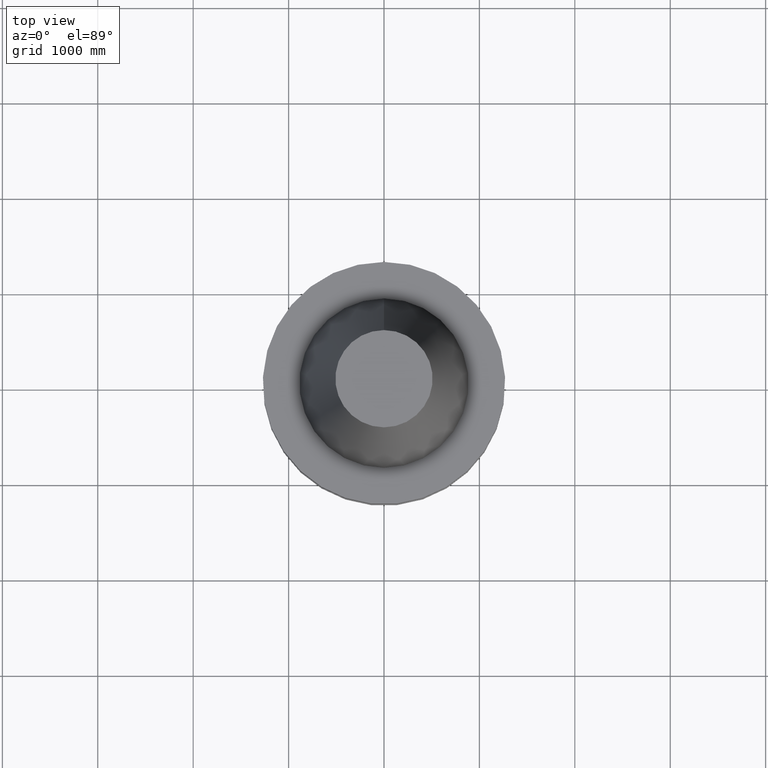
[diagram: clean part render]
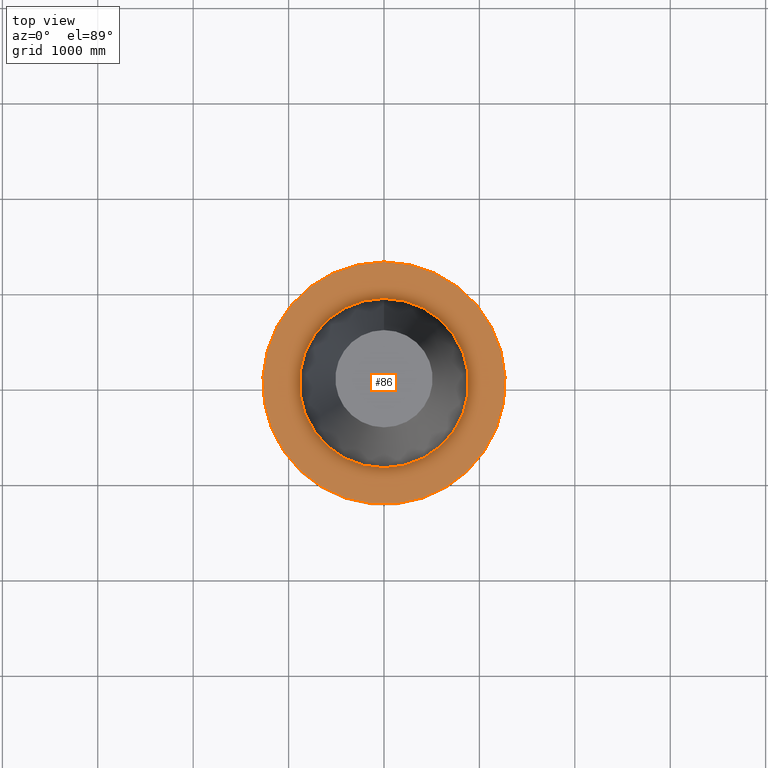
[diagram: same view with one face highlighted and labeled with its STEP entity id]
A machine part, top view. The second image highlights one B-rep face of the part: STEP entity #86.
In plain terms, the highlighted planar face has unit normal (-0, -0, 1).
Its self-contained STEP definition (entity closure, byte-faithful):
#86=ADVANCED_FACE('Unnamed[1]',(#218,#219),#220,.T.);
#139=EDGE_CURVE('Unnamed[1]',#299,#299,#300,.T.);
#149=EDGE_CURVE('Unnamed[1]',#315,#315,#316,.T.);
#218=FACE_BOUND('',#398,.T.);
#219=FACE_OUTER_BOUND('',#399,.T.);
#220=PLANE('',#400);
#299=VERTEX_POINT('',#499);
#300=CIRCLE('',#500,50.0);
#315=VERTEX_POINT('',#519);
#316=CIRCLE('',#520,34.925);
#398=EDGE_LOOP('',(#599));
#399=EDGE_LOOP('',(#600));
#400=AXIS2_PLACEMENT_3D('',#601,#602,#603);
#499=CARTESIAN_POINT('',(9.18485099360509E-017,50.0,-1.49999999999999));
#500=AXIS2_PLACEMENT_3D('',#689,#690,#691);
#519=CARTESIAN_POINT('',(9.18485099360511E-017,34.925,-1.5));
#520=AXIS2_PLACEMENT_3D('',#707,#708,#709);
#599=ORIENTED_EDGE('',*,*,#149,.F.);
#600=ORIENTED_EDGE('',*,*,#139,.T.);
#601=CARTESIAN_POINT('',(9.1848509936051E-017,42.4625,-1.49999999999999));
#602=DIRECTION('',(-6.12323399573677E-017,-1.22464679914735E-016,1.0));
#603=DIRECTION('',(-1.23259516440783E-032,1.0,1.22464679914735E-016));
#689=CARTESIAN_POINT('',(9.18485099360515E-017,1.58503636865388E-014,-1.5));
#690=DIRECTION('',(-6.12323399573677E-017,-2.72265846766671E-017,1.0));
#691=DIRECTION('',(-6.49430021956856E-033,1.0,2.72265846766671E-017));
#707=CARTESIAN_POINT('',(9.18485099360515E-017,1.58503636865388E-014,-1.5));
#708=DIRECTION('',(-6.12323399573677E-017,-2.72265846766536E-017,1.0));
#709=DIRECTION('',(-6.4943002195703E-033,1.0,2.72265846766536E-017));